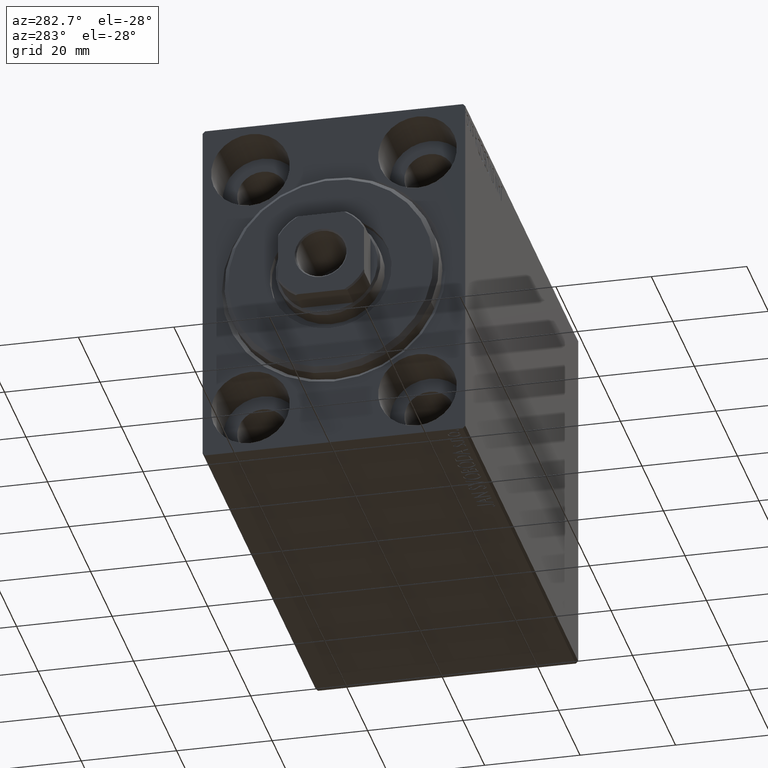
[diagram: clean part render]
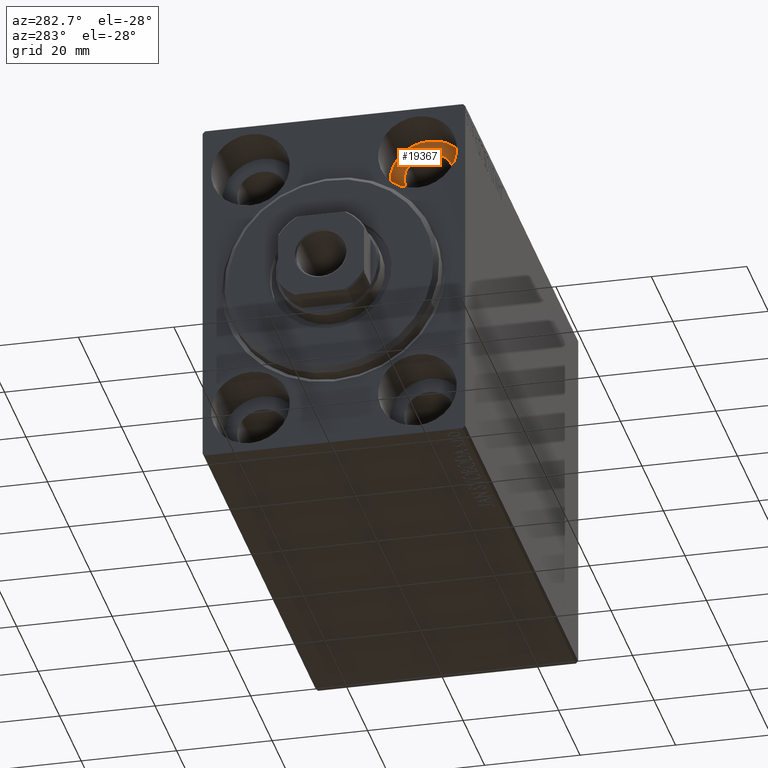
[diagram: same view with one face highlighted and labeled with its STEP entity id]
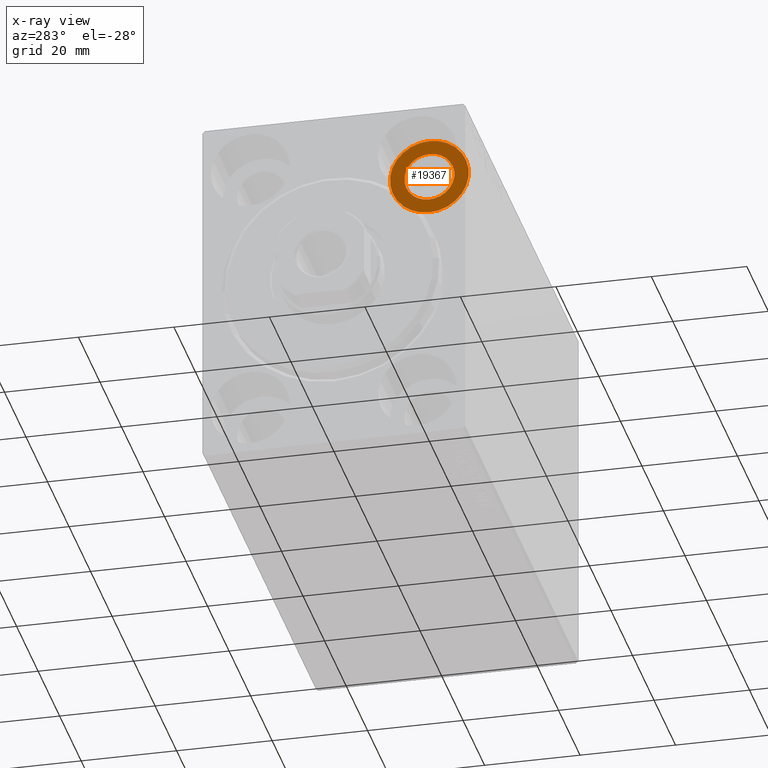
[diagram: x-ray of the same camera — body ghosted, the highlighted face saturated]
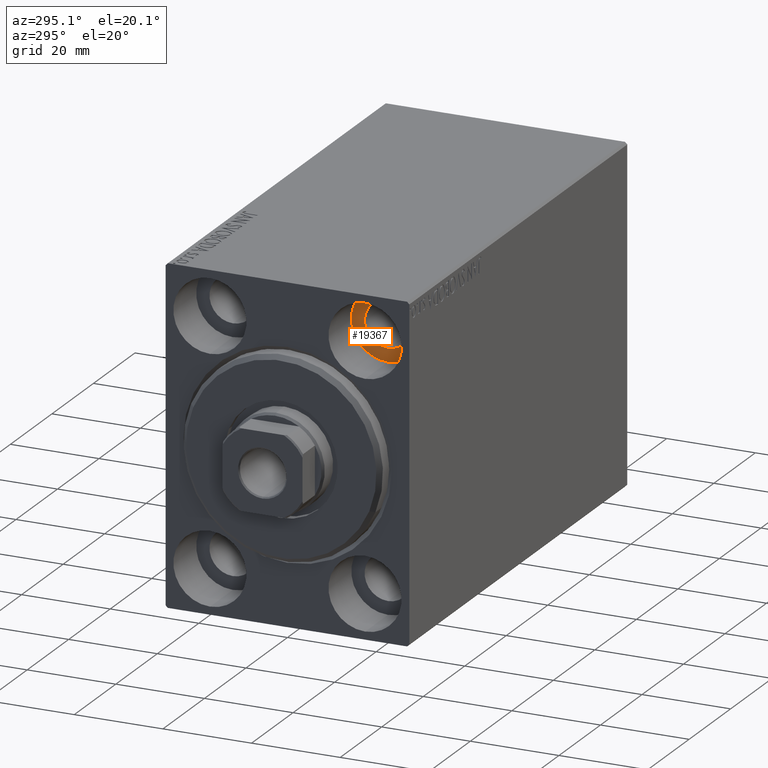
[diagram: same view with one face highlighted and labeled with its STEP entity id]
A machine part, auxiliary view. The second image highlights one B-rep face of the part: STEP entity #19367.
The next image is the same camera in x-ray: the body ghosted, the highlighted face saturated — about 0% of this face is hidden behind the body in this view.
A second angle (auxiliary view) of the same face is appended — the face is thin or edge-on in the first view.
In plain terms, the highlighted planar face has unit normal (-1, 0, 0).
Its self-contained STEP definition (entity closure, byte-faithful):
#104 = ORIENTED_EDGE ( 'NONE', *, *, #39957, .F. ) ;
#929 = VERTEX_POINT ( 'NONE', #24923 ) ;
#987 = ORIENTED_EDGE ( 'NONE', *, *, #19665, .T. ) ;
#1906 = DIRECTION ( 'NONE',  ( -1.000000000000000000, 0.000000000000000000, 0.000000000000000000 ) ) ;
#4350 = DIRECTION ( 'NONE',  ( -1.000000000000000000, 0.000000000000000000, 0.000000000000000000 ) ) ;
#4605 = CARTESIAN_POINT ( 'NONE',  ( 10.99999999999999645, -17.49999999999999645, 22.25000000000000000 ) ) ;
#5489 = PLANE ( 'NONE',  #5630 ) ;
#5630 = AXIS2_PLACEMENT_3D ( 'NONE', #42718, #39631, #12114 ) ;
#5675 = ORIENTED_EDGE ( 'NONE', *, *, #43286, .T. ) ;
#5998 = CIRCLE ( 'NONE', #27833, 8.249999999999992895 ) ;
#6230 = CARTESIAN_POINT ( 'NONE',  ( 10.99999999999999645, -17.49999999999999645, 27.49999999999999645 ) ) ;
#7441 = CARTESIAN_POINT ( 'NONE',  ( 11.00000000000000000, -17.49999999999999645, 27.49999999999999645 ) ) ;
#8401 = CARTESIAN_POINT ( 'NONE',  ( 10.99999999999999645, -17.49999999999999645, 27.49999999999999645 ) ) ;
#10860 = CIRCLE ( 'NONE', #34059, 5.249999999999997335 ) ;
#12105 = VERTEX_POINT ( 'NONE', #4605 ) ;
#12114 = DIRECTION ( 'NONE',  ( 0.000000000000000000, 0.000000000000000000, 1.000000000000000000 ) ) ;
#15445 = DIRECTION ( 'NONE',  ( -1.000000000000000000, 0.000000000000000000, 0.000000000000000000 ) ) ;
#16787 = DIRECTION ( 'NONE',  ( -1.000000000000000000, 0.000000000000000000, 0.000000000000000000 ) ) ;
#18193 = CIRCLE ( 'NONE', #28758, 8.249999999999992895 ) ;
#18492 = FACE_BOUND ( 'NONE', #25806, .T. ) ;
#19367 = ADVANCED_FACE ( 'NONE', ( #18492, #31931 ), #5489, .T. ) ;
#19665 = EDGE_CURVE ( 'NONE', #38397, #929, #18193, .T. ) ;
#20863 = DIRECTION ( 'NONE',  ( 0.000000000000000000, 0.000000000000000000, 1.000000000000000000 ) ) ;
#24923 = CARTESIAN_POINT ( 'NONE',  ( 11.00000000000000000, -17.49999999999999645, 19.25000000000000000 ) ) ;
#25806 = EDGE_LOOP ( 'NONE', ( #104, #27174 ) ) ;
#26777 = EDGE_CURVE ( 'NONE', #12105, #33775, #38769, .T. ) ;
#27174 = ORIENTED_EDGE ( 'NONE', *, *, #26777, .F. ) ;
#27833 = AXIS2_PLACEMENT_3D ( 'NONE', #7441, #4350, #20863 ) ;
#28223 = AXIS2_PLACEMENT_3D ( 'NONE', #8401, #15445, #39228 ) ;
#28758 = AXIS2_PLACEMENT_3D ( 'NONE', #31881, #1906, #29008 ) ;
#29008 = DIRECTION ( 'NONE',  ( 0.000000000000000000, 0.000000000000000000, 1.000000000000000000 ) ) ;
#29394 = EDGE_LOOP ( 'NONE', ( #987, #5675 ) ) ;
#30220 = DIRECTION ( 'NONE',  ( 0.000000000000000000, 0.000000000000000000, 1.000000000000000000 ) ) ;
#31881 = CARTESIAN_POINT ( 'NONE',  ( 11.00000000000000000, -17.49999999999999645, 27.49999999999999645 ) ) ;
#31931 = FACE_OUTER_BOUND ( 'NONE', #29394, .T. ) ;
#33775 = VERTEX_POINT ( 'NONE', #34278 ) ;
#34059 = AXIS2_PLACEMENT_3D ( 'NONE', #6230, #16787, #30220 ) ;
#34278 = CARTESIAN_POINT ( 'NONE',  ( 10.99999999999999645, -17.49999999999999645, 32.74999999999999289 ) ) ;
#37196 = CARTESIAN_POINT ( 'NONE',  ( 11.00000000000000000, -17.49999999999999645, 35.74999999999999289 ) ) ;
#38397 = VERTEX_POINT ( 'NONE', #37196 ) ;
#38769 = CIRCLE ( 'NONE', #28223, 5.249999999999997335 ) ;
#39228 = DIRECTION ( 'NONE',  ( 0.000000000000000000, 0.000000000000000000, 1.000000000000000000 ) ) ;
#39631 = DIRECTION ( 'NONE',  ( -1.000000000000000000, 0.000000000000000000, 0.000000000000000000 ) ) ;
#39957 = EDGE_CURVE ( 'NONE', #33775, #12105, #10860, .T. ) ;
#42718 = CARTESIAN_POINT ( 'NONE',  ( 11.00000000000000000, 0.000000000000000000, 0.000000000000000000 ) ) ;
#43286 = EDGE_CURVE ( 'NONE', #929, #38397, #5998, .T. ) ;